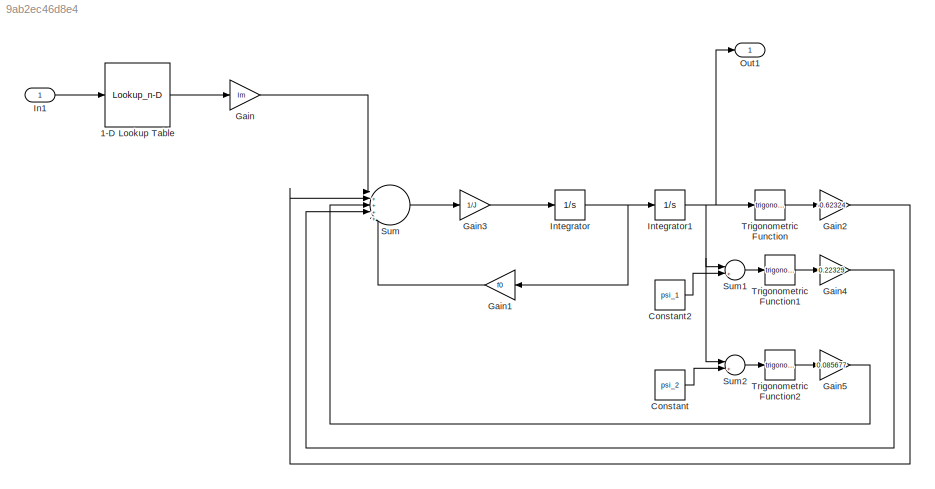
MODEL slx_9ab2ec46d8e4
KIND model
CONFIG AbsTol = auto
CONFIG EnableMultiTasking = off
CONFIG FixedStep = auto
CONFIG MaxStep = auto
CONFIG MinStep = auto
CONFIG RelTol = 1e-3
CONFIG SampleTimeConstraint = Unconstrained
CONFIG SolverName = VariableStepAuto
CONFIG StartTime = 0.0
CONFIG StopTime = 140
BLOCK [Lookup_n-D] 1-D Lookup Table
  BreakpointsForDimension1 = [0,4.6, 4.7, 5, 5.5, 6, 7, 7.5, 8, 8.5, 10]
  InputPortMap = u0
  InternalRulePriority = Speed
  NumberOfTableDimensions = 1
  Ports = [1, 1]
  RndMeth = Simplest
  Table = [0,0,0.10984,0.21163,0.38639,0.54977,0.83,0.9284,0.9284, 0.9284,0.9284]
BLOCK [Constant] Constant
  Value = psi_2
BLOCK [Constant] Constant2
  Value = psi_1
BLOCK [Gain] Gain
  Gain = lm
BLOCK [Gain] Gain1
  Gain = f0
BLOCK [Gain] Gain2
  Gain = -0.62324
BLOCK [Gain] Gain3
  Gain = 1/J
BLOCK [Gain] Gain4
  Gain = 0.22329
BLOCK [Gain] Gain5
  Gain = 0.085677
BLOCK [Inport] In1
BLOCK [Integrator] Integrator
  Ports = [1, 1]
BLOCK [Integrator] Integrator1
  Ports = [1, 1]
BLOCK [Outport] Out1
BLOCK [Sum] Sum
  Inputs = |++++-|
  Ports = [5, 1]
BLOCK [Sum] Sum1
  Inputs = |++|
  Ports = [2, 1]
BLOCK [Sum] Sum2
  Inputs = |++|
  Ports = [2, 1]
BLOCK [Trigonometry] Trigonometric Function
  Ports = [1, 1]
BLOCK [Trigonometry] Trigonometric Function1
  Ports = [1, 1]
BLOCK [Trigonometry] Trigonometric Function2
  Ports = [1, 1]
LINE 1-D Lookup Table:1 -> Gain:1
LINE Constant2:1 -> Sum1:2
LINE Constant:1 -> Sum2:2
LINE Gain1:1 -> Sum:5
LINE Gain2:1 -> Sum:2
LINE Gain3:1 -> Integrator:1
LINE Gain4:1 -> Sum:4
LINE Gain5:1 -> Sum:3
LINE Gain:1 -> Sum:1
LINE In1:1 -> 1-D Lookup Table:1
NET Integrator1:1 -> Out1:1, Sum1:1, Sum2:1, Trigonometric Function:1
NET Integrator:1 -> Gain1:1, Integrator1:1
LINE Sum1:1 -> Trigonometric Function1:1
LINE Sum2:1 -> Trigonometric Function2:1
LINE Sum:1 -> Gain3:1
LINE Trigonometric Function1:1 -> Gain4:1
LINE Trigonometric Function2:1 -> Gain5:1
LINE Trigonometric Function:1 -> Gain2:1
note: NET lines group one-source signal fan-out (src -> all destinations, sorted); 1:1 wires keep LINE
